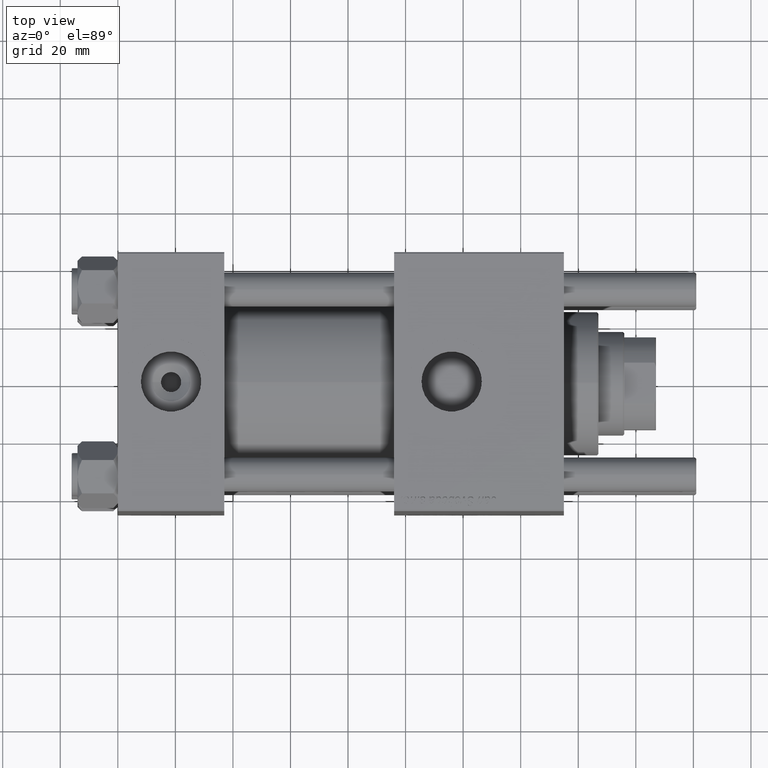
[diagram: clean part render]
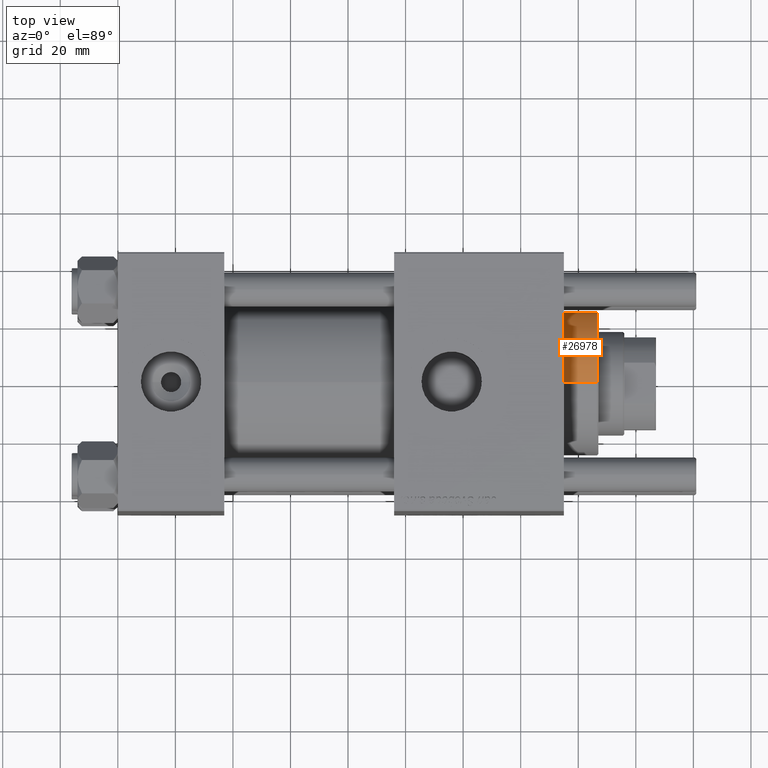
[diagram: same view with one face highlighted and labeled with its STEP entity id]
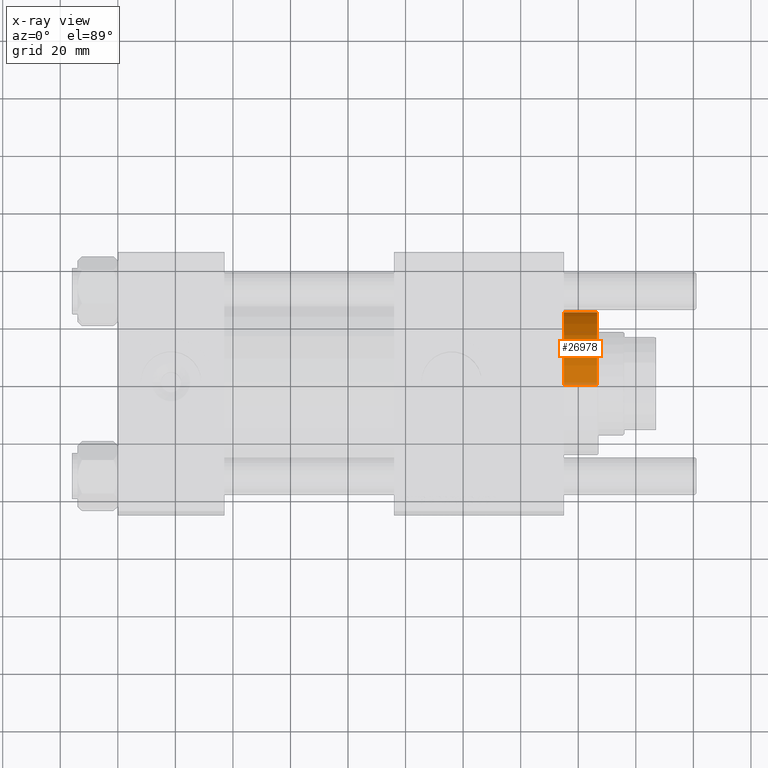
[diagram: x-ray of the same camera — body ghosted, the highlighted face saturated]
A machine part, top view. The second image highlights one B-rep face of the part: STEP entity #26978.
The next image is the same camera in x-ray: the body ghosted, the highlighted face saturated — about 3% of this face is hidden behind the body in this view.
In plain terms, the highlighted cylindrical surface (partial cylindrical patch) has radius 25 mm, axis along (-1, -0, 0).
Its self-contained STEP definition (entity closure, byte-faithful):
#649 = ORIENTED_EDGE ( 'NONE', *, *, #47687, .F. ) ;
#2214 = CIRCLE ( 'NONE', #19216, 25.00000000000000000 ) ;
#4388 = CARTESIAN_POINT ( 'NONE',  ( 0.000000000000000000, 0.000000000000000000, 40.20000000000000284 ) ) ;
#4900 = AXIS2_PLACEMENT_3D ( 'NONE', #57531, #8184, #8746 ) ;
#5449 = LINE ( 'NONE', #13713, #39835 ) ;
#6265 = VERTEX_POINT ( 'NONE', #7806 ) ;
#7806 = CARTESIAN_POINT ( 'NONE',  ( 25.00000000000000000, 3.061616997868383043E-15, 40.20000000000000284 ) ) ;
#8184 = DIRECTION ( 'NONE',  ( -0.000000000000000000, -0.000000000000000000, -1.000000000000000000 ) ) ;
#8746 = DIRECTION ( 'NONE',  ( -1.000000000000000000, 0.000000000000000000, 0.000000000000000000 ) ) ;
#9218 = ORIENTED_EDGE ( 'NONE', *, *, #20665, .T. ) ;
#9915 = EDGE_LOOP ( 'NONE', ( #50883, #9218, #49317, #649 ) ) ;
#10212 = VERTEX_POINT ( 'NONE', #30111 ) ;
#12947 = DIRECTION ( 'NONE',  ( 1.000000000000000000, 0.000000000000000000, 0.000000000000000000 ) ) ;
#13713 = CARTESIAN_POINT ( 'NONE',  ( -25.00000000000000000, 0.000000000000000000, 40.70000000000000284 ) ) ;
#13995 = DIRECTION ( 'NONE',  ( -0.000000000000000000, -0.000000000000000000, -1.000000000000000000 ) ) ;
#17440 = EDGE_CURVE ( 'NONE', #10212, #42578, #56679, .T. ) ;
#19216 = AXIS2_PLACEMENT_3D ( 'NONE', #4388, #25976, #12947 ) ;
#20665 = EDGE_CURVE ( 'NONE', #6265, #10212, #38503, .T. ) ;
#21063 = DIRECTION ( 'NONE',  ( -0.000000000000000000, -0.000000000000000000, -1.000000000000000000 ) ) ;
#25976 = DIRECTION ( 'NONE',  ( 0.000000000000000000, 0.000000000000000000, -1.000000000000000000 ) ) ;
#26978 = ADVANCED_FACE ( 'NONE', ( #53675 ), #43934, .T. ) ;
#28513 = CARTESIAN_POINT ( 'NONE',  ( 0.000000000000000000, 0.000000000000000000, 28.69999999999999929 ) ) ;
#30111 = CARTESIAN_POINT ( 'NONE',  ( 25.00000000000000000, 3.061616997868383043E-15, 28.69999999999999929 ) ) ;
#31155 = AXIS2_PLACEMENT_3D ( 'NONE', #28513, #46852, #37682 ) ;
#34723 = CARTESIAN_POINT ( 'NONE',  ( -25.00000000000000000, 0.000000000000000000, 40.20000000000000284 ) ) ;
#37682 = DIRECTION ( 'NONE',  ( 1.000000000000000000, 0.000000000000000000, 0.000000000000000000 ) ) ;
#38503 = LINE ( 'NONE', #47675, #42567 ) ;
#39835 = VECTOR ( 'NONE', #13995, 1000.000000000000000 ) ;
#42567 = VECTOR ( 'NONE', #21063, 1000.000000000000000 ) ;
#42578 = VERTEX_POINT ( 'NONE', #49842 ) ;
#43934 = CYLINDRICAL_SURFACE ( 'NONE', #4900, 25.00000000000000000 ) ;
#46852 = DIRECTION ( 'NONE',  ( 0.000000000000000000, 0.000000000000000000, 1.000000000000000000 ) ) ;
#47675 = CARTESIAN_POINT ( 'NONE',  ( 25.00000000000000000, 3.061616997868383043E-15, 40.70000000000000284 ) ) ;
#47687 = EDGE_CURVE ( 'NONE', #57238, #42578, #5449, .T. ) ;
#49317 = ORIENTED_EDGE ( 'NONE', *, *, #17440, .T. ) ;
#49842 = CARTESIAN_POINT ( 'NONE',  ( -25.00000000000000000, 0.000000000000000000, 28.69999999999999929 ) ) ;
#50883 = ORIENTED_EDGE ( 'NONE', *, *, #51642, .T. ) ;
#51642 = EDGE_CURVE ( 'NONE', #57238, #6265, #2214, .T. ) ;
#53675 = FACE_OUTER_BOUND ( 'NONE', #9915, .T. ) ;
#56679 = CIRCLE ( 'NONE', #31155, 25.00000000000000000 ) ;
#57238 = VERTEX_POINT ( 'NONE', #34723 ) ;
#57531 = CARTESIAN_POINT ( 'NONE',  ( 0.000000000000000000, 0.000000000000000000, 40.70000000000000284 ) ) ;